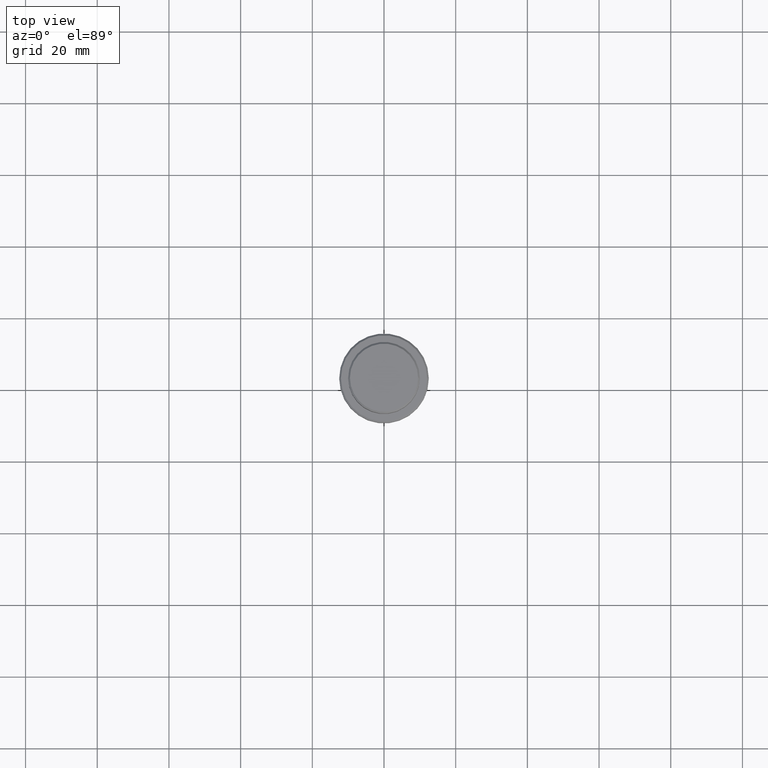
[diagram: clean part render]
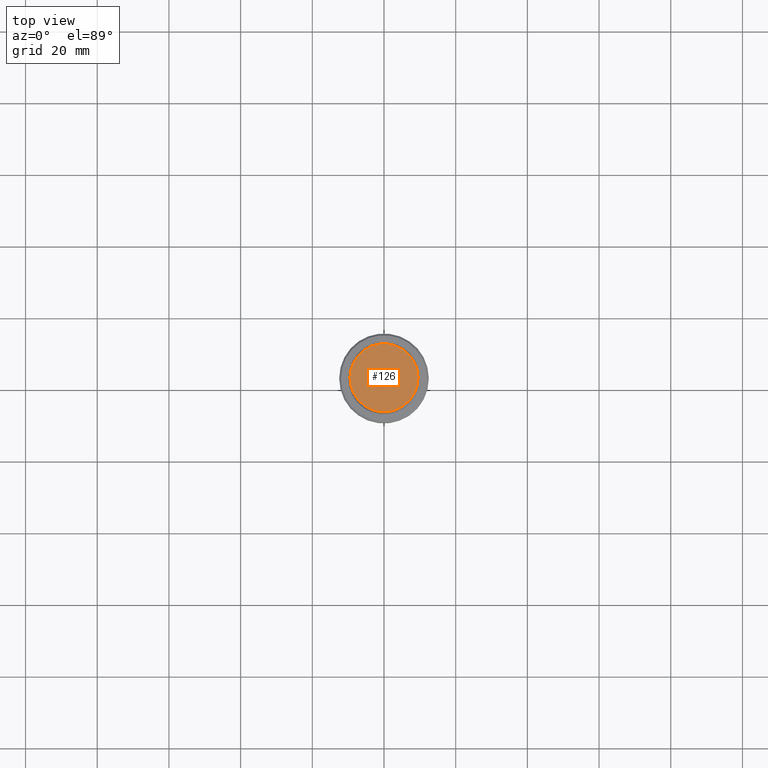
[diagram: same view with one face highlighted and labeled with its STEP entity id]
A machine part, top view. The second image highlights one B-rep face of the part: STEP entity #126.
In plain terms, the highlighted planar face has unit normal (0, -0, 1).
Its self-contained STEP definition (entity closure, byte-faithful):
#60 = CARTESIAN_POINT ( 'NONE',  ( 0.000000000000000000, 0.000000000000000000, 0.000000000000000000 ) ) ;
#126 = ADVANCED_FACE ( 'NONE', ( #1175 ), #274, .T. ) ;
#154 = EDGE_CURVE ( 'NONE', #618, #765, #1358, .T. ) ;
#186 = CARTESIAN_POINT ( 'NONE',  ( 0.000000000000000000, 0.000000000000000000, 0.000000000000000000 ) ) ;
#194 = CARTESIAN_POINT ( 'NONE',  ( -9.500000000000008882, 0.000000000000000000, 0.000000000000000000 ) ) ;
#224 = CARTESIAN_POINT ( 'NONE',  ( 0.000000000000000000, 0.000000000000000000, 0.000000000000000000 ) ) ;
#274 = PLANE ( 'NONE',  #671 ) ;
#320 = CARTESIAN_POINT ( 'NONE',  ( 9.500000000000008882, 1.194030629168669864E-15, 0.000000000000000000 ) ) ;
#480 = ORIENTED_EDGE ( 'NONE', *, *, #707, .T. ) ;
#511 = DIRECTION ( 'NONE',  ( 1.000000000000000000, 0.000000000000000000, 0.000000000000000000 ) ) ;
#618 = VERTEX_POINT ( 'NONE', #320 ) ;
#671 = AXIS2_PLACEMENT_3D ( 'NONE', #186, #942, #511 ) ;
#691 = EDGE_LOOP ( 'NONE', ( #480, #706 ) ) ;
#706 = ORIENTED_EDGE ( 'NONE', *, *, #154, .T. ) ;
#707 = EDGE_CURVE ( 'NONE', #765, #618, #1407, .T. ) ;
#765 = VERTEX_POINT ( 'NONE', #194 ) ;
#863 = DIRECTION ( 'NONE',  ( -0.000000000000000000, -0.000000000000000000, 1.000000000000000000 ) ) ;
#942 = DIRECTION ( 'NONE',  ( 0.000000000000000000, -0.000000000000000000, 1.000000000000000000 ) ) ;
#1069 = AXIS2_PLACEMENT_3D ( 'NONE', #224, #863, #1412 ) ;
#1175 = FACE_OUTER_BOUND ( 'NONE', #691, .T. ) ;
#1292 = AXIS2_PLACEMENT_3D ( 'NONE', #60, #1392, #1381 ) ;
#1358 = CIRCLE ( 'NONE', #1292, 9.500000000000008882 ) ;
#1381 = DIRECTION ( 'NONE',  ( 1.000000000000000000, 0.000000000000000000, 0.000000000000000000 ) ) ;
#1392 = DIRECTION ( 'NONE',  ( -0.000000000000000000, -0.000000000000000000, 1.000000000000000000 ) ) ;
#1407 = CIRCLE ( 'NONE', #1069, 9.500000000000008882 ) ;
#1412 = DIRECTION ( 'NONE',  ( 1.000000000000000000, 0.000000000000000000, 0.000000000000000000 ) ) ;